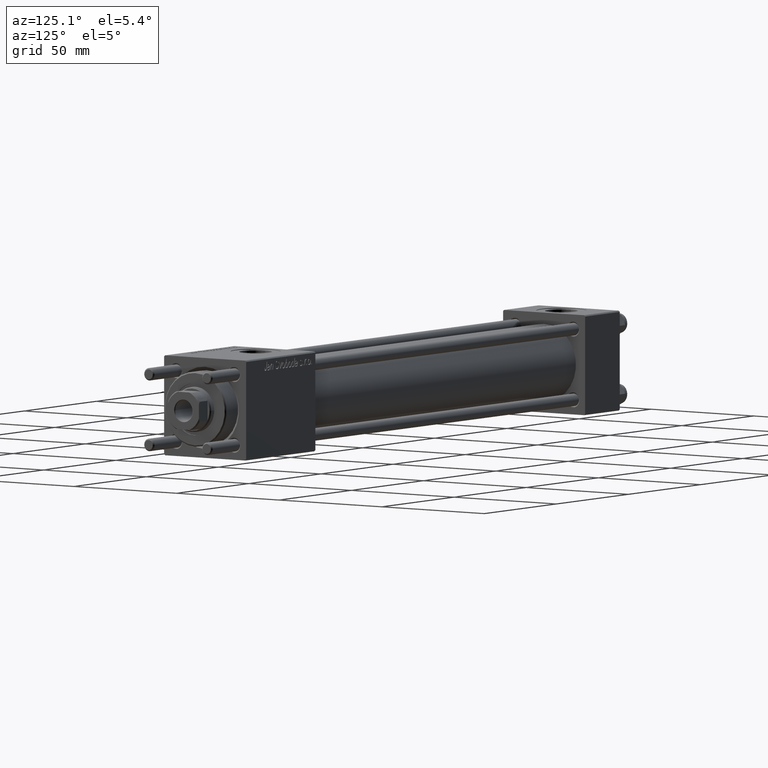
[diagram: clean part render]
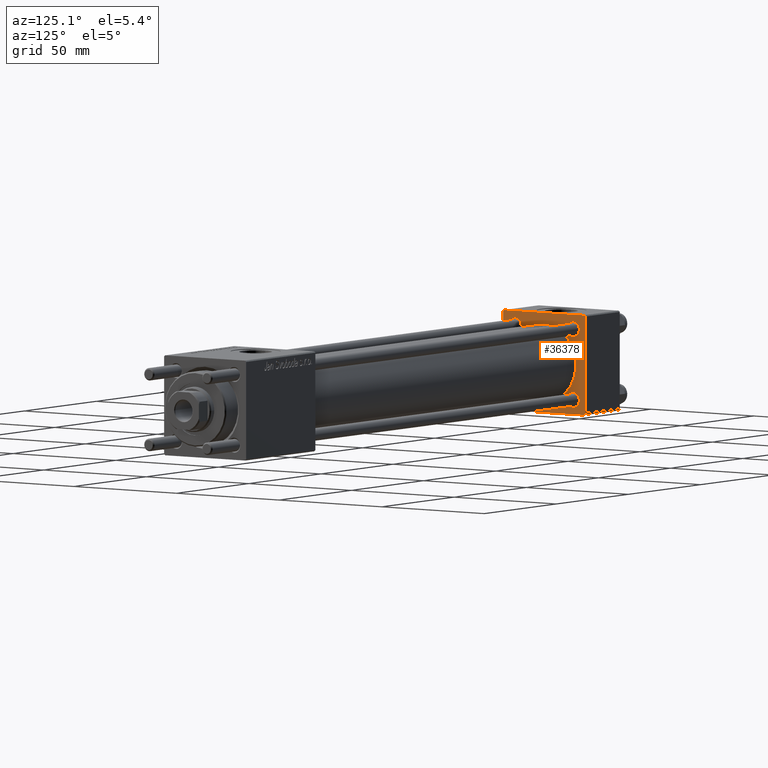
[diagram: same view with one face highlighted and labeled with its STEP entity id]
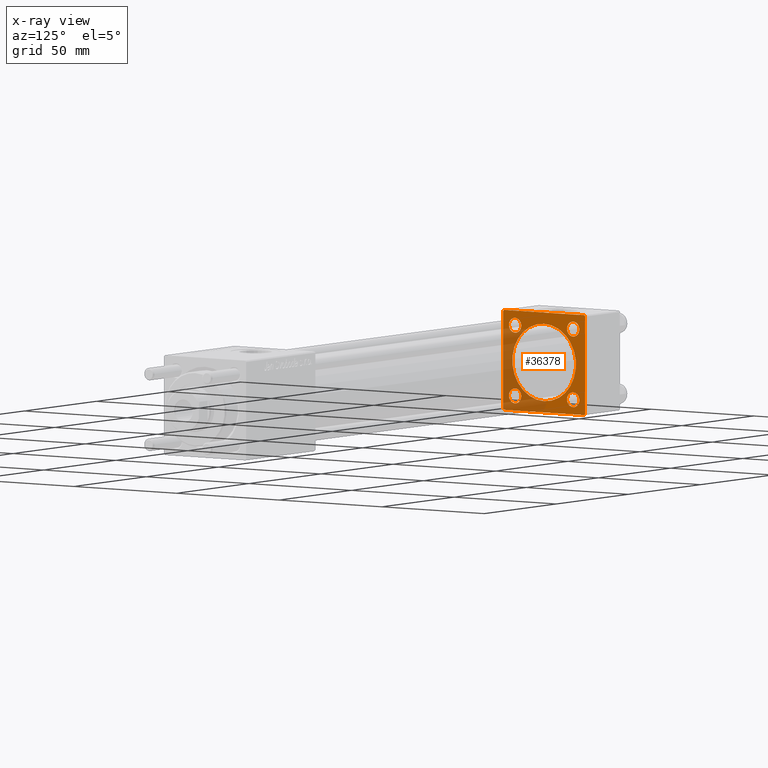
[diagram: x-ray of the same camera — body ghosted, the highlighted face saturated]
A machine part, auxiliary view. The second image highlights one B-rep face of the part: STEP entity #36378.
The next image is the same camera in x-ray: the body ghosted, the highlighted face saturated — about 36% of this face is hidden behind the body in this view.
In plain terms, the highlighted planar face has unit normal (-1, 0, 0).
Its self-contained STEP definition (entity closure, byte-faithful):
#28 = ORIENTED_EDGE ( 'NONE', *, *, #17906, .T. ) ;
#145 = CARTESIAN_POINT ( 'NONE',  ( 24.00000000000000000, 19.50000000000000000, 20.00000000000000000 ) ) ;
#215 = DIRECTION ( 'NONE',  ( 0.000000000000000000, 0.000000000000000000, -1.000000000000000000 ) ) ;
#1565 = CIRCLE ( 'NONE', #33626, 3.000000000000004441 ) ;
#1951 = FACE_BOUND ( 'NONE', #51636, .T. ) ;
#3152 = DIRECTION ( 'NONE',  ( -1.000000000000000000, -0.000000000000000000, -0.000000000000000000 ) ) ;
#4843 = DIRECTION ( 'NONE',  ( 0.000000000000000000, 0.000000000000000000, 1.000000000000000000 ) ) ;
#4860 = CARTESIAN_POINT ( 'NONE',  ( 24.00000000000000000, 14.14999999999999858, 14.15000000000000036 ) ) ;
#4931 = EDGE_CURVE ( 'NONE', #47821, #36677, #24131, .T. ) ;
#5372 = CARTESIAN_POINT ( 'NONE',  ( 24.00000000000000000, -20.00000000000000355, 19.99999999999998934 ) ) ;
#5831 = VECTOR ( 'NONE', #11228, 1000.000000000000114 ) ;
#5931 = EDGE_CURVE ( 'NONE', #41863, #17125, #18675, .T. ) ;
#5938 = LINE ( 'NONE', #5372, #43526 ) ;
#5997 = CIRCLE ( 'NONE', #16987, 2.999999999999948930 ) ;
#6046 = ORIENTED_EDGE ( 'NONE', *, *, #20770, .T. ) ;
#6101 = ORIENTED_EDGE ( 'NONE', *, *, #4931, .F. ) ;
#6584 = DIRECTION ( 'NONE',  ( 0.000000000000000000, 0.000000000000000000, 1.000000000000000000 ) ) ;
#6648 = ORIENTED_EDGE ( 'NONE', *, *, #43626, .T. ) ;
#6782 = DIRECTION ( 'NONE',  ( 0.000000000000000000, 0.000000000000000000, 1.000000000000000000 ) ) ;
#7071 = DIRECTION ( 'NONE',  ( 1.000000000000000000, 0.000000000000000000, 0.000000000000000000 ) ) ;
#7700 = AXIS2_PLACEMENT_3D ( 'NONE', #49610, #43973, #31083 ) ;
#7842 = VECTOR ( 'NONE', #40644, 1000.000000000000000 ) ;
#8331 = EDGE_CURVE ( 'NONE', #22089, #13011, #17803, .T. ) ;
#8725 = CARTESIAN_POINT ( 'NONE',  ( 24.00000000000000000, 20.00000000000000000, 19.49999999999999289 ) ) ;
#8827 = LINE ( 'NONE', #52948, #11855 ) ;
#9695 = AXIS2_PLACEMENT_3D ( 'NONE', #4860, #30681, #38711 ) ;
#10784 = CARTESIAN_POINT ( 'NONE',  ( 23.99999999999999289, -7.038826752868131828E-16, -15.50000000000000000 ) ) ;
#11228 = DIRECTION ( 'NONE',  ( -0.000000000000000000, -0.7071067811865500152, -0.7071067811865451302 ) ) ;
#11386 = ORIENTED_EDGE ( 'NONE', *, *, #35956, .T. ) ;
#11405 = FACE_BOUND ( 'NONE', #26253, .T. ) ;
#11505 = CARTESIAN_POINT ( 'NONE',  ( 24.00000000000000000, -20.00000000000000355, 19.49999999999998224 ) ) ;
#11526 = ORIENTED_EDGE ( 'NONE', *, *, #12862, .T. ) ;
#11855 = VECTOR ( 'NONE', #215, 1000.000000000000000 ) ;
#11928 = EDGE_CURVE ( 'NONE', #13011, #22089, #5997, .T. ) ;
#12020 = ORIENTED_EDGE ( 'NONE', *, *, #41828, .T. ) ;
#12056 = CARTESIAN_POINT ( 'NONE',  ( 24.00000000000000000, -14.14999999999999503, -14.15000000000000391 ) ) ;
#12255 = ORIENTED_EDGE ( 'NONE', *, *, #18219, .T. ) ;
#12739 = CARTESIAN_POINT ( 'NONE',  ( 24.00000000000000000, -19.50000000000000711, -20.00000000000000000 ) ) ;
#12807 = ORIENTED_EDGE ( 'NONE', *, *, #22495, .T. ) ;
#12862 = EDGE_CURVE ( 'NONE', #14677, #45769, #18833, .T. ) ;
#13011 = VERTEX_POINT ( 'NONE', #56073 ) ;
#13175 = CARTESIAN_POINT ( 'NONE',  ( 24.00000000000000000, 14.14999999999999858, -14.15000000000000036 ) ) ;
#13839 = VERTEX_POINT ( 'NONE', #39481 ) ;
#13873 = CARTESIAN_POINT ( 'NONE',  ( 24.00000000000000000, 14.14999999999999858, -17.14999999999994884 ) ) ;
#13974 = CARTESIAN_POINT ( 'NONE',  ( 24.00000000000000000, -19.49999999999999289, 19.99999999999998934 ) ) ;
#14009 = CARTESIAN_POINT ( 'NONE',  ( 24.00000000000000000, -20.00000000000000355, 19.49999999999998224 ) ) ;
#14677 = VERTEX_POINT ( 'NONE', #22348 ) ;
#15138 = ORIENTED_EDGE ( 'NONE', *, *, #50458, .T. ) ;
#15140 = FACE_BOUND ( 'NONE', #53954, .T. ) ;
#15564 = EDGE_LOOP ( 'NONE', ( #50864, #28, #17214, #6046, #15138, #45405, #12020, #12255 ) ) ;
#15699 = EDGE_CURVE ( 'NONE', #31596, #31771, #31768, .T. ) ;
#15892 = AXIS2_PLACEMENT_3D ( 'NONE', #41317, #38141, #54488 ) ;
#16511 = CARTESIAN_POINT ( 'NONE',  ( 23.99999999999999289, -2.602085213965210642E-15, 0.000000000000000000 ) ) ;
#16614 = CARTESIAN_POINT ( 'NONE',  ( 24.00000000000000000, -14.14999999999999503, 11.15000000000000036 ) ) ;
#16987 = AXIS2_PLACEMENT_3D ( 'NONE', #53531, #53826, #22875 ) ;
#17125 = VERTEX_POINT ( 'NONE', #14009 ) ;
#17214 = ORIENTED_EDGE ( 'NONE', *, *, #29380, .F. ) ;
#17803 = CIRCLE ( 'NONE', #32486, 2.999999999999948930 ) ;
#17906 = EDGE_CURVE ( 'NONE', #31596, #35176, #38422, .T. ) ;
#17962 = VECTOR ( 'NONE', #28356, 1000.000000000000000 ) ;
#18219 = EDGE_CURVE ( 'NONE', #49781, #31771, #36935, .T. ) ;
#18660 = CARTESIAN_POINT ( 'NONE',  ( 24.00000000000000000, 14.14999999999999858, 17.14999999999994884 ) ) ;
#18675 = LINE ( 'NONE', #11505, #5831 ) ;
#18833 = CIRCLE ( 'NONE', #45272, 3.000000000000004441 ) ;
#18899 = CIRCLE ( 'NONE', #22576, 3.000000000000004441 ) ;
#19779 = VECTOR ( 'NONE', #52146, 1000.000000000000000 ) ;
#20770 = EDGE_CURVE ( 'NONE', #36884, #49464, #30828, .T. ) ;
#22089 = VERTEX_POINT ( 'NONE', #13873 ) ;
#22348 = CARTESIAN_POINT ( 'NONE',  ( 24.00000000000000000, -14.14999999999999503, -17.15000000000000924 ) ) ;
#22495 = EDGE_CURVE ( 'NONE', #45769, #14677, #1565, .T. ) ;
#22576 = AXIS2_PLACEMENT_3D ( 'NONE', #50160, #41275, #6584 ) ;
#22875 = DIRECTION ( 'NONE',  ( 0.000000000000000000, 0.000000000000000000, 1.000000000000000000 ) ) ;
#23231 = ORIENTED_EDGE ( 'NONE', *, *, #56664, .F. ) ;
#23734 = CIRCLE ( 'NONE', #54869, 15.50000000000000000 ) ;
#24025 = CARTESIAN_POINT ( 'NONE',  ( 24.00000000000000000, 0.000000000000000000, 0.000000000000000000 ) ) ;
#24131 = CIRCLE ( 'NONE', #15892, 15.50000000000000000 ) ;
#24138 = ORIENTED_EDGE ( 'NONE', *, *, #11928, .T. ) ;
#24235 = EDGE_LOOP ( 'NONE', ( #6648, #47867 ) ) ;
#24520 = EDGE_CURVE ( 'NONE', #31828, #52274, #49275, .T. ) ;
#25107 = CARTESIAN_POINT ( 'NONE',  ( 24.00000000000000000, -20.00000000000000000, -19.49999999999999645 ) ) ;
#26253 = EDGE_LOOP ( 'NONE', ( #11386, #31519 ) ) ;
#26662 = CARTESIAN_POINT ( 'NONE',  ( 24.00000000000000000, 20.00000000000000000, 20.00000000000000000 ) ) ;
#27184 = FACE_BOUND ( 'NONE', #32327, .T. ) ;
#27540 = CARTESIAN_POINT ( 'NONE',  ( 24.00000000000000000, 20.00000000000000000, -19.50000000000002132 ) ) ;
#28356 = DIRECTION ( 'NONE',  ( 0.000000000000000000, 0.7071067811865401342, -0.7071067811865549002 ) ) ;
#28891 = DIRECTION ( 'NONE',  ( -1.000000000000000000, -0.000000000000000000, -0.000000000000000000 ) ) ;
#28902 = FACE_OUTER_BOUND ( 'NONE', #15564, .T. ) ;
#29380 = EDGE_CURVE ( 'NONE', #36884, #35176, #8827, .T. ) ;
#29450 = CARTESIAN_POINT ( 'NONE',  ( 24.00000000000000000, -14.14999999999999503, -14.15000000000000391 ) ) ;
#30681 = DIRECTION ( 'NONE',  ( -1.000000000000000000, -0.000000000000000000, -0.000000000000000000 ) ) ;
#30828 = LINE ( 'NONE', #145, #47309 ) ;
#30953 = AXIS2_PLACEMENT_3D ( 'NONE', #46783, #55379, #33048 ) ;
#31059 = ORIENTED_EDGE ( 'NONE', *, *, #8331, .T. ) ;
#31083 = DIRECTION ( 'NONE',  ( 0.000000000000000000, 0.000000000000000000, 1.000000000000000000 ) ) ;
#31519 = ORIENTED_EDGE ( 'NONE', *, *, #41480, .T. ) ;
#31596 = VERTEX_POINT ( 'NONE', #51699 ) ;
#31768 = LINE ( 'NONE', #49241, #7842 ) ;
#31771 = VERTEX_POINT ( 'NONE', #12739 ) ;
#31828 = VERTEX_POINT ( 'NONE', #48539 ) ;
#32327 = EDGE_LOOP ( 'NONE', ( #11526, #12807 ) ) ;
#32486 = AXIS2_PLACEMENT_3D ( 'NONE', #13175, #38696, #4843 ) ;
#32640 = DIRECTION ( 'NONE',  ( -1.000000000000000000, 0.000000000000000000, -0.000000000000000000 ) ) ;
#33048 = DIRECTION ( 'NONE',  ( 0.000000000000000000, 0.000000000000000000, 1.000000000000000000 ) ) ;
#33477 = CIRCLE ( 'NONE', #9695, 2.999999999999948930 ) ;
#33626 = AXIS2_PLACEMENT_3D ( 'NONE', #12056, #3152, #51313 ) ;
#35176 = VERTEX_POINT ( 'NONE', #27540 ) ;
#35956 = EDGE_CURVE ( 'NONE', #13839, #39655, #36996, .T. ) ;
#36378 = ADVANCED_FACE ( 'NONE', ( #27184, #1951, #50661, #11405, #15140, #28902 ), #41235, .F. ) ;
#36677 = VERTEX_POINT ( 'NONE', #10784 ) ;
#36884 = VERTEX_POINT ( 'NONE', #8725 ) ;
#36935 = LINE ( 'NONE', #41526, #17962 ) ;
#36996 = CIRCLE ( 'NONE', #7700, 2.999999999999948930 ) ;
#37210 = DIRECTION ( 'NONE',  ( -0.000000000000000000, 0.000000000000000000, 1.000000000000000000 ) ) ;
#38141 = DIRECTION ( 'NONE',  ( 1.000000000000000000, 0.000000000000000000, 0.000000000000000000 ) ) ;
#38422 = LINE ( 'NONE', #56451, #19779 ) ;
#38696 = DIRECTION ( 'NONE',  ( -1.000000000000000000, -0.000000000000000000, -0.000000000000000000 ) ) ;
#38711 = DIRECTION ( 'NONE',  ( 0.000000000000000000, 0.000000000000000000, 1.000000000000000000 ) ) ;
#39481 = CARTESIAN_POINT ( 'NONE',  ( 24.00000000000000000, 14.14999999999999858, 11.15000000000005365 ) ) ;
#39655 = VERTEX_POINT ( 'NONE', #18660 ) ;
#40141 = DIRECTION ( 'NONE',  ( 0.000000000000000000, -1.000000000000000000, -2.602085213965210149E-16 ) ) ;
#40627 = DIRECTION ( 'NONE',  ( 0.000000000000000000, 8.673617379884036705E-17, -1.000000000000000000 ) ) ;
#40644 = DIRECTION ( 'NONE',  ( 0.000000000000000000, -1.000000000000000000, 1.734723475976807094E-16 ) ) ;
#41235 = PLANE ( 'NONE',  #51588 ) ;
#41275 = DIRECTION ( 'NONE',  ( -1.000000000000000000, -0.000000000000000000, -0.000000000000000000 ) ) ;
#41317 = CARTESIAN_POINT ( 'NONE',  ( 23.99999999999999289, -2.602085213965210642E-15, 0.000000000000000000 ) ) ;
#41480 = EDGE_CURVE ( 'NONE', #39655, #13839, #33477, .T. ) ;
#41526 = CARTESIAN_POINT ( 'NONE',  ( 24.00000000000000000, -19.50000000000000711, -20.00000000000000000 ) ) ;
#41828 = EDGE_CURVE ( 'NONE', #17125, #49781, #5938, .T. ) ;
#41863 = VERTEX_POINT ( 'NONE', #13974 ) ;
#43526 = VECTOR ( 'NONE', #40627, 1000.000000000000000 ) ;
#43626 = EDGE_CURVE ( 'NONE', #52274, #31828, #18899, .T. ) ;
#43973 = DIRECTION ( 'NONE',  ( -1.000000000000000000, -0.000000000000000000, -0.000000000000000000 ) ) ;
#45272 = AXIS2_PLACEMENT_3D ( 'NONE', #29450, #28891, #51224 ) ;
#45405 = ORIENTED_EDGE ( 'NONE', *, *, #5931, .T. ) ;
#45769 = VERTEX_POINT ( 'NONE', #55877 ) ;
#46783 = CARTESIAN_POINT ( 'NONE',  ( 24.00000000000000000, -14.14999999999999503, 14.15000000000000391 ) ) ;
#47101 = CARTESIAN_POINT ( 'NONE',  ( 24.00000000000000000, 19.50000000000000000, 20.00000000000000000 ) ) ;
#47309 = VECTOR ( 'NONE', #52583, 999.9999999999998863 ) ;
#47821 = VERTEX_POINT ( 'NONE', #52788 ) ;
#47867 = ORIENTED_EDGE ( 'NONE', *, *, #24520, .T. ) ;
#48539 = CARTESIAN_POINT ( 'NONE',  ( 24.00000000000000000, -14.14999999999999503, 17.15000000000000924 ) ) ;
#49241 = CARTESIAN_POINT ( 'NONE',  ( 24.00000000000000000, 20.00000000000000000, -20.00000000000000711 ) ) ;
#49275 = CIRCLE ( 'NONE', #30953, 3.000000000000004441 ) ;
#49464 = VERTEX_POINT ( 'NONE', #47101 ) ;
#49610 = CARTESIAN_POINT ( 'NONE',  ( 24.00000000000000000, 14.14999999999999858, 14.15000000000000036 ) ) ;
#49781 = VERTEX_POINT ( 'NONE', #25107 ) ;
#50160 = CARTESIAN_POINT ( 'NONE',  ( 24.00000000000000000, -14.14999999999999503, 14.15000000000000391 ) ) ;
#50458 = EDGE_CURVE ( 'NONE', #49464, #41863, #53592, .T. ) ;
#50661 = FACE_BOUND ( 'NONE', #24235, .T. ) ;
#50864 = ORIENTED_EDGE ( 'NONE', *, *, #15699, .F. ) ;
#51224 = DIRECTION ( 'NONE',  ( 0.000000000000000000, 0.000000000000000000, 1.000000000000000000 ) ) ;
#51313 = DIRECTION ( 'NONE',  ( 0.000000000000000000, 0.000000000000000000, 1.000000000000000000 ) ) ;
#51588 = AXIS2_PLACEMENT_3D ( 'NONE', #24025, #32640, #37210 ) ;
#51636 = EDGE_LOOP ( 'NONE', ( #31059, #24138 ) ) ;
#51699 = CARTESIAN_POINT ( 'NONE',  ( 24.00000000000000000, 19.50000000000000711, -20.00000000000000711 ) ) ;
#52146 = DIRECTION ( 'NONE',  ( -0.000000000000000000, 0.7071067811865524577, 0.7071067811865426878 ) ) ;
#52274 = VERTEX_POINT ( 'NONE', #16614 ) ;
#52583 = DIRECTION ( 'NONE',  ( 0.000000000000000000, -0.7071067811865425767, 0.7071067811865525687 ) ) ;
#52788 = CARTESIAN_POINT ( 'NONE',  ( 23.99999999999999289, -2.602085213965210642E-15, 15.50000000000000000 ) ) ;
#52948 = CARTESIAN_POINT ( 'NONE',  ( 24.00000000000000000, 20.00000000000000000, 20.00000000000000000 ) ) ;
#53531 = CARTESIAN_POINT ( 'NONE',  ( 24.00000000000000000, 14.14999999999999858, -14.15000000000000036 ) ) ;
#53592 = LINE ( 'NONE', #26662, #53716 ) ;
#53716 = VECTOR ( 'NONE', #40141, 1000.000000000000000 ) ;
#53826 = DIRECTION ( 'NONE',  ( -1.000000000000000000, -0.000000000000000000, -0.000000000000000000 ) ) ;
#53954 = EDGE_LOOP ( 'NONE', ( #6101, #23231 ) ) ;
#54488 = DIRECTION ( 'NONE',  ( 0.000000000000000000, 0.000000000000000000, 1.000000000000000000 ) ) ;
#54869 = AXIS2_PLACEMENT_3D ( 'NONE', #16511, #7071, #6782 ) ;
#55379 = DIRECTION ( 'NONE',  ( -1.000000000000000000, -0.000000000000000000, -0.000000000000000000 ) ) ;
#55877 = CARTESIAN_POINT ( 'NONE',  ( 24.00000000000000000, -14.14999999999999503, -11.15000000000000036 ) ) ;
#56073 = CARTESIAN_POINT ( 'NONE',  ( 24.00000000000000000, 14.14999999999999858, -11.15000000000005365 ) ) ;
#56451 = CARTESIAN_POINT ( 'NONE',  ( 24.00000000000000000, 20.00000000000000000, -19.50000000000002132 ) ) ;
#56664 = EDGE_CURVE ( 'NONE', #36677, #47821, #23734, .T. ) ;